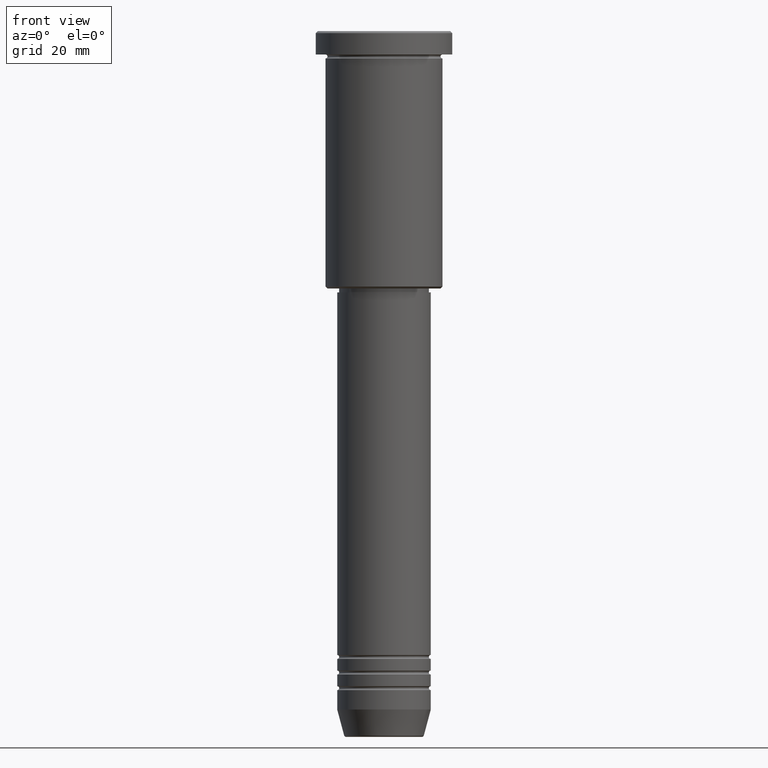
[diagram: clean part render]
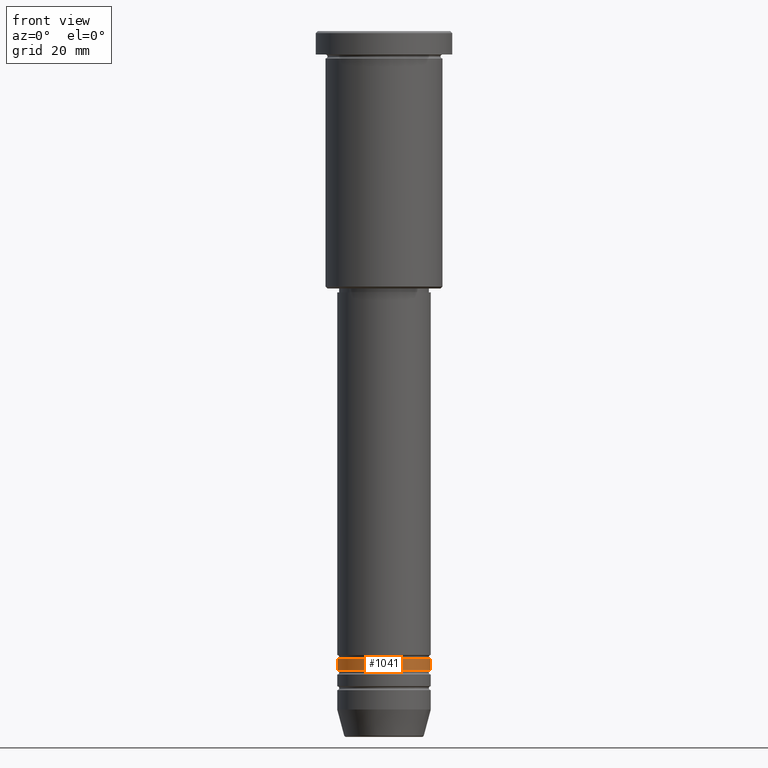
[diagram: same view with one face highlighted and labeled with its STEP entity id]
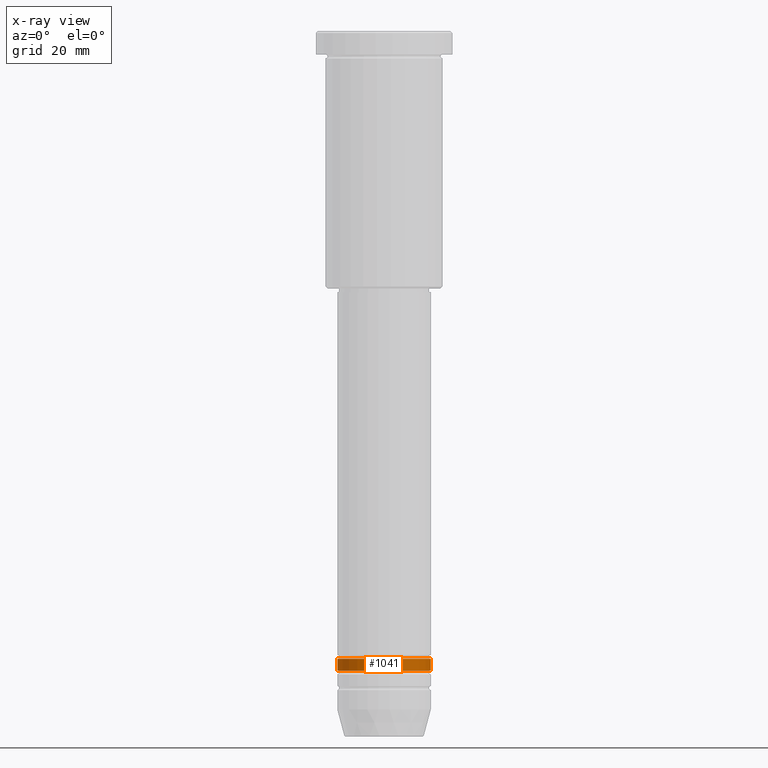
[diagram: x-ray of the same camera — body ghosted, the highlighted face saturated]
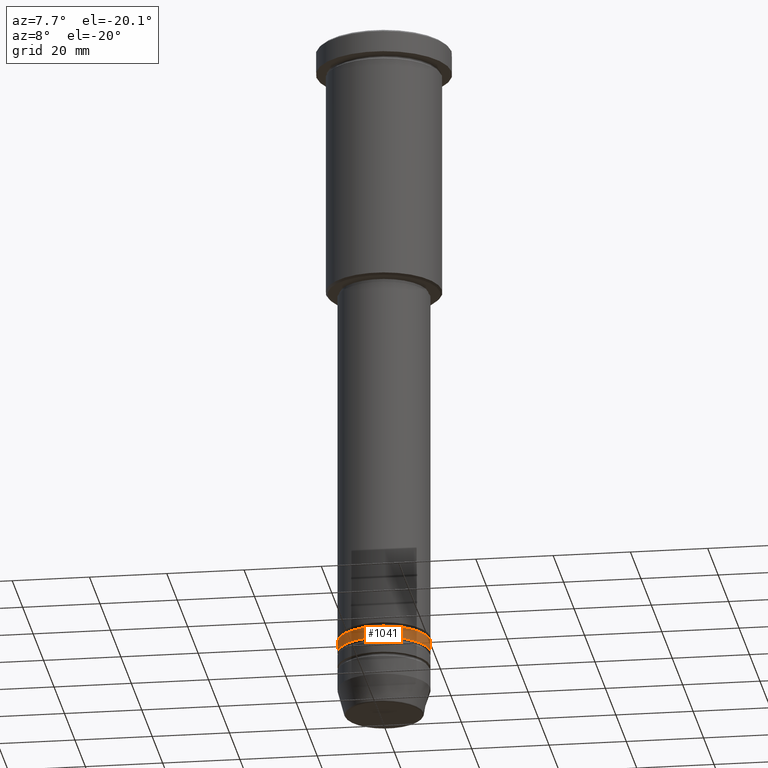
[diagram: same view with one face highlighted and labeled with its STEP entity id]
A machine part, front view. The second image highlights one B-rep face of the part: STEP entity #1041.
The next image is the same camera in x-ray: the body ghosted, the highlighted face saturated — about 0% of this face is hidden behind the body in this view.
A second angle (auxiliary view) of the same face is appended — the face is thin or edge-on in the first view.
In plain terms, the highlighted cylindrical surface (partial cylindrical patch) has radius 12 mm, axis along (-0, -0, 1).
Its self-contained STEP definition (entity closure, byte-faithful):
#29 = DIRECTION ( 'NONE',  ( 1.000000000000000000, 0.000000000000000000, 0.000000000000000000 ) ) ;
#32 = AXIS2_PLACEMENT_3D ( 'NONE', #1168, #258, #531 ) ;
#35 = DIRECTION ( 'NONE',  ( 1.000000000000000000, 0.000000000000000000, 0.000000000000000000 ) ) ;
#89 = ORIENTED_EDGE ( 'NONE', *, *, #1128, .T. ) ;
#140 = ORIENTED_EDGE ( 'NONE', *, *, #446, .T. ) ;
#153 = ORIENTED_EDGE ( 'NONE', *, *, #735, .F. ) ;
#198 = CARTESIAN_POINT ( 'NONE',  ( -12.00000000000000000, 1.469576158976824144E-15, -160.9999999999998579 ) ) ;
#206 = CIRCLE ( 'NONE', #674, 12.00000000000000000 ) ;
#254 = DIRECTION ( 'NONE',  ( -0.000000000000000000, -0.000000000000000000, 1.000000000000000000 ) ) ;
#258 = DIRECTION ( 'NONE',  ( -0.000000000000000000, -0.000000000000000000, 1.000000000000000000 ) ) ;
#287 = AXIS2_PLACEMENT_3D ( 'NONE', #1135, #1056, #35 ) ;
#333 = CIRCLE ( 'NONE', #32, 12.00000000000000355 ) ;
#340 = EDGE_LOOP ( 'NONE', ( #153, #140, #89, #644 ) ) ;
#420 = VERTEX_POINT ( 'NONE', #897 ) ;
#421 = LINE ( 'NONE', #679, #599 ) ;
#446 = EDGE_CURVE ( 'NONE', #420, #526, #333, .T. ) ;
#526 = VERTEX_POINT ( 'NONE', #824 ) ;
#531 = DIRECTION ( 'NONE',  ( 1.000000000000000000, 0.000000000000000000, 0.000000000000000000 ) ) ;
#556 = CARTESIAN_POINT ( 'NONE',  ( 12.00000000000000000, 0.000000000000000000, -160.9999999999998579 ) ) ;
#574 = VERTEX_POINT ( 'NONE', #198 ) ;
#599 = VECTOR ( 'NONE', #763, 1000.000000000000000 ) ;
#644 = ORIENTED_EDGE ( 'NONE', *, *, #955, .F. ) ;
#669 = FACE_OUTER_BOUND ( 'NONE', #340, .T. ) ;
#674 = AXIS2_PLACEMENT_3D ( 'NONE', #1125, #883, #29 ) ;
#679 = CARTESIAN_POINT ( 'NONE',  ( -12.00000000000000178, 1.469576158976824144E-15, 0.000000000000000000 ) ) ;
#718 = LINE ( 'NONE', #1159, #1134 ) ;
#735 = EDGE_CURVE ( 'NONE', #420, #574, #421, .T. ) ;
#763 = DIRECTION ( 'NONE',  ( -0.000000000000000000, -0.000000000000000000, 1.000000000000000000 ) ) ;
#824 = CARTESIAN_POINT ( 'NONE',  ( 12.00000000000000355, 0.000000000000000000, -163.9999999999998863 ) ) ;
#845 = VERTEX_POINT ( 'NONE', #556 ) ;
#883 = DIRECTION ( 'NONE',  ( -0.000000000000000000, -0.000000000000000000, 1.000000000000000000 ) ) ;
#897 = CARTESIAN_POINT ( 'NONE',  ( -12.00000000000000533, 1.469576158976824539E-15, -163.9999999999998863 ) ) ;
#955 = EDGE_CURVE ( 'NONE', #574, #845, #206, .T. ) ;
#1041 = ADVANCED_FACE ( 'NONE', ( #669 ), #1042, .T. ) ;
#1042 = CYLINDRICAL_SURFACE ( 'NONE', #287, 12.00000000000000178 ) ;
#1056 = DIRECTION ( 'NONE',  ( -0.000000000000000000, -0.000000000000000000, 1.000000000000000000 ) ) ;
#1125 = CARTESIAN_POINT ( 'NONE',  ( 0.000000000000000000, 0.000000000000000000, -160.9999999999998579 ) ) ;
#1128 = EDGE_CURVE ( 'NONE', #526, #845, #718, .T. ) ;
#1134 = VECTOR ( 'NONE', #254, 1000.000000000000000 ) ;
#1135 = CARTESIAN_POINT ( 'NONE',  ( 0.000000000000000000, 0.000000000000000000, 0.000000000000000000 ) ) ;
#1159 = CARTESIAN_POINT ( 'NONE',  ( 12.00000000000000178, 0.000000000000000000, 0.000000000000000000 ) ) ;
#1168 = CARTESIAN_POINT ( 'NONE',  ( 0.000000000000000000, 0.000000000000000000, -163.9999999999998863 ) ) ;